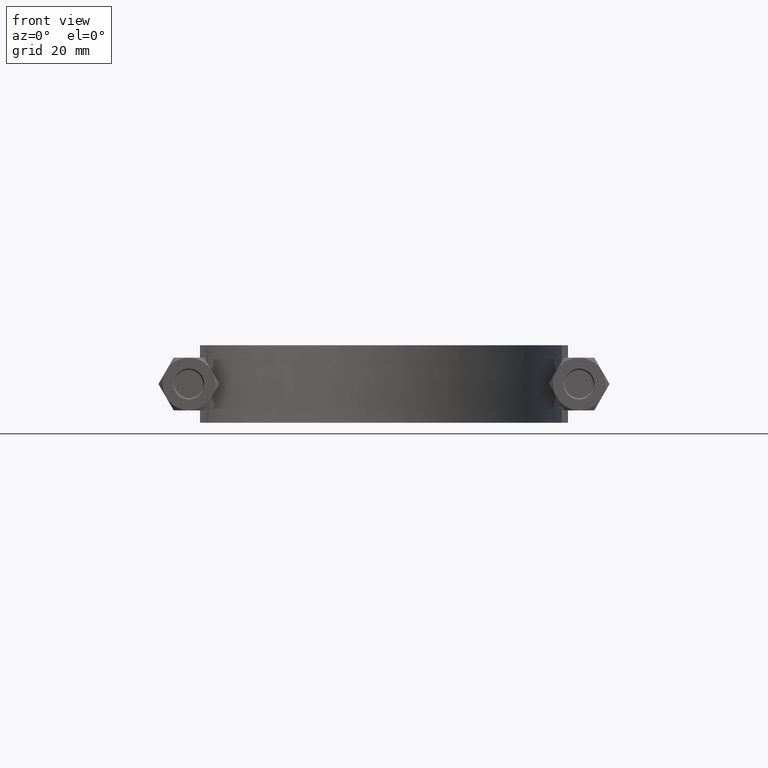
[diagram: clean part render]
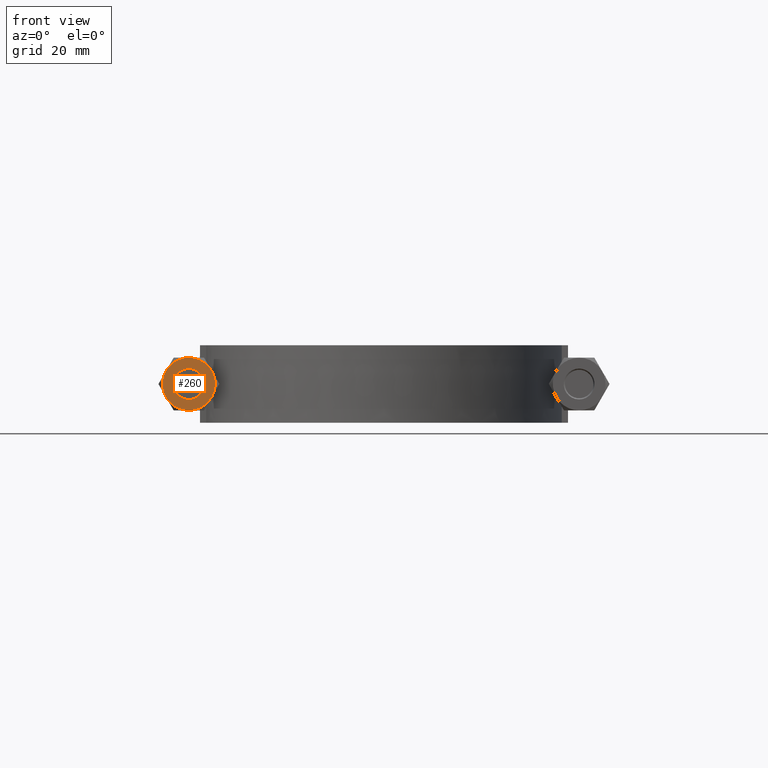
[diagram: same view with one face highlighted and labeled with its STEP entity id]
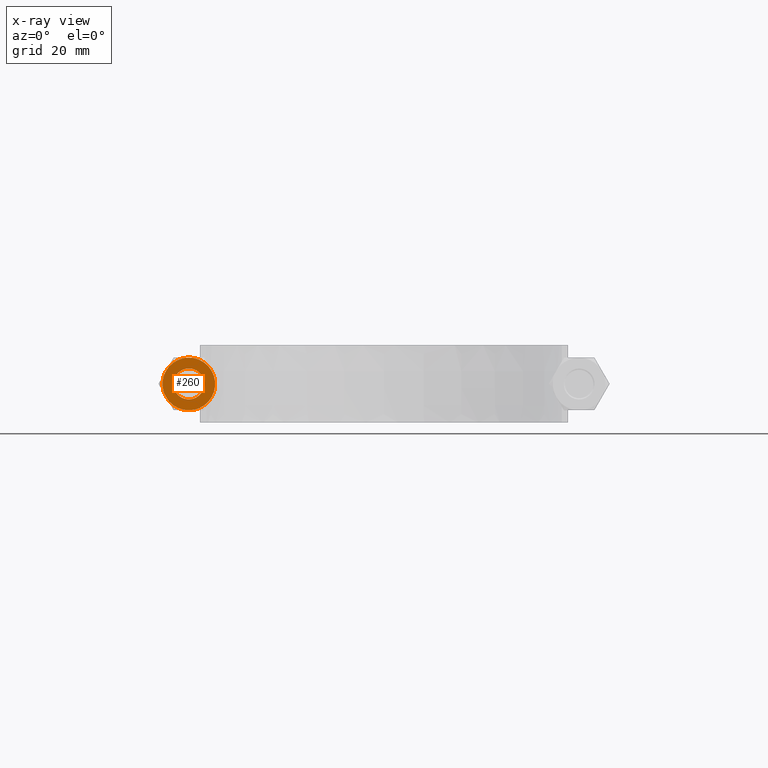
[diagram: x-ray of the same camera — body ghosted, the highlighted face saturated]
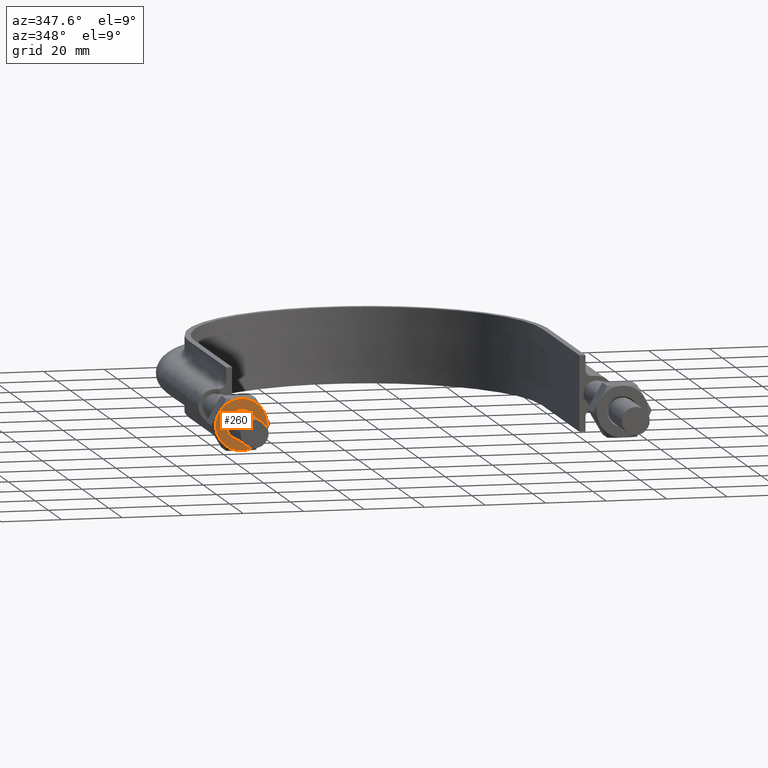
[diagram: same view with one face highlighted and labeled with its STEP entity id]
A machine part, front view. The second image highlights one B-rep face of the part: STEP entity #260.
The next image is the same camera in x-ray: the body ghosted, the highlighted face saturated — about 0% of this face is hidden behind the body in this view.
A second angle (auxiliary view) of the same face is appended — the face is thin or edge-on in the first view.
In plain terms, the highlighted planar face has unit normal (0, 1, 0).
Its self-contained STEP definition (entity closure, byte-faithful):
#260 = ADVANCED_FACE( '', ( #384, #385 ), #386, .F. );
#384 = FACE_OUTER_BOUND( '', #551, .T. );
#385 = FACE_BOUND( '', #552, .T. );
#386 = PLANE( '', #553 );
#551 = EDGE_LOOP( '', ( #1584, #1585, #1586, #1587, #1588, #1589 ) );
#552 = EDGE_LOOP( '', ( #1590 ) );
#553 = AXIS2_PLACEMENT_3D( '', #1591, #1592, #1593 );
#1584 = ORIENTED_EDGE( '', *, *, #1902, .F. );
#1585 = ORIENTED_EDGE( '', *, *, #1881, .F. );
#1586 = ORIENTED_EDGE( '', *, *, #1895, .F. );
#1587 = ORIENTED_EDGE( '', *, *, #1917, .F. );
#1588 = ORIENTED_EDGE( '', *, *, #1871, .F. );
#1589 = ORIENTED_EDGE( '', *, *, #1918, .F. );
#1590 = ORIENTED_EDGE( '', *, *, #1900, .T. );
#1591 = CARTESIAN_POINT( '', ( -63.0000000000000, 20.0000000000000, -2.44921270764476E-016 ) );
#1592 = DIRECTION( '', ( 9.18247024260625E-049, 1.00000000000000, 6.12303176911190E-017 ) );
#1593 = DIRECTION( '', ( 1.00000000000000, 0.000000000000000, -1.49966072182214E-032 ) );
#1871 = EDGE_CURVE( '', #2056, #2058, #2059, .T. );
#1881 = EDGE_CURVE( '', #2077, #2078, #2079, .T. );
#1895 = EDGE_CURVE( '', #2092, #2077, #2102, .T. );
#1900 = EDGE_CURVE( '', #2109, #2109, #2110, .T. );
#1902 = EDGE_CURVE( '', #2078, #2113, #2114, .T. );
#1917 = EDGE_CURVE( '', #2058, #2092, #2135, .T. );
#1918 = EDGE_CURVE( '', #2113, #2056, #2136, .T. );
#2056 = VERTEX_POINT( '', #2380 );
#2058 = VERTEX_POINT( '', #2387 );
#2059 = CIRCLE( '', #2388, 8.50000000000000 );
#2077 = VERTEX_POINT( '', #2415 );
#2078 = VERTEX_POINT( '', #2416 );
#2079 = CIRCLE( '', #2417, 8.50000000000000 );
#2092 = VERTEX_POINT( '', #2449 );
#2102 = CIRCLE( '', #2472, 8.50000000000000 );
#2109 = VERTEX_POINT( '', #2479 );
#2110 = CIRCLE( '', #2480, 5.00000000000000 );
#2113 = VERTEX_POINT( '', #2483 );
#2114 = CIRCLE( '', #2484, 8.50000000000000 );
#2135 = CIRCLE( '', #2531, 8.50000000000000 );
#2136 = CIRCLE( '', #2532, 8.50000000000000 );
#2380 = CARTESIAN_POINT( '', ( -63.0000000000000, 20.0000000000000, 8.50000000000000 ) );
#2387 = CARTESIAN_POINT( '', ( -55.6387840678323, 20.0000000000000, 4.25000000000000 ) );
#2388 = AXIS2_PLACEMENT_3D( '', #2942, #2943, #2944 );
#2415 = CARTESIAN_POINT( '', ( -63.0000000000000, 20.0000000000000, -8.50000000000000 ) );
#2416 = CARTESIAN_POINT( '', ( -70.3612159321677, 20.0000000000000, -4.25000000000000 ) );
#2417 = AXIS2_PLACEMENT_3D( '', #2961, #2962, #2963 );
#2449 = CARTESIAN_POINT( '', ( -55.6387840678323, 20.0000000000000, -4.25000000000000 ) );
#2472 = AXIS2_PLACEMENT_3D( '', #2974, #2975, #2976 );
#2479 = CARTESIAN_POINT( '', ( -63.0000000000000, 20.0000000000000, 5.00000000000000 ) );
#2480 = AXIS2_PLACEMENT_3D( '', #2989, #2990, #2991 );
#2483 = CARTESIAN_POINT( '', ( -70.3612159321678, 20.0000000000000, 4.24999999999999 ) );
#2484 = AXIS2_PLACEMENT_3D( '', #2995, #2996, #2997 );
#2531 = AXIS2_PLACEMENT_3D( '', #3016, #3017, #3018 );
#2532 = AXIS2_PLACEMENT_3D( '', #3019, #3020, #3021 );
#2942 = CARTESIAN_POINT( '', ( -63.0000000000000, 20.0000000000000, -2.44921270764476E-016 ) );
#2943 = DIRECTION( '', ( 9.18247024260625E-049, 1.00000000000000, 6.12303176911190E-017 ) );
#2944 = DIRECTION( '', ( 0.000000000000000, -6.12303176911190E-017, 1.00000000000000 ) );
#2961 = CARTESIAN_POINT( '', ( -63.0000000000000, 20.0000000000000, -2.44921270764476E-016 ) );
#2962 = DIRECTION( '', ( 9.18247024260625E-049, 1.00000000000000, 6.12303176911190E-017 ) );
#2963 = DIRECTION( '', ( 0.000000000000000, -6.12303176911190E-017, 1.00000000000000 ) );
#2974 = CARTESIAN_POINT( '', ( -63.0000000000000, 20.0000000000000, -2.44921270764476E-016 ) );
#2975 = DIRECTION( '', ( 9.18247024260625E-049, 1.00000000000000, 6.12303176911190E-017 ) );
#2976 = DIRECTION( '', ( 0.000000000000000, -6.12303176911190E-017, 1.00000000000000 ) );
#2989 = CARTESIAN_POINT( '', ( -63.0000000000000, 20.0000000000000, -2.44921270764476E-016 ) );
#2990 = DIRECTION( '', ( 9.18247024260625E-049, 1.00000000000000, 6.12303176911190E-017 ) );
#2991 = DIRECTION( '', ( 0.000000000000000, -6.12303176911190E-017, 1.00000000000000 ) );
#2995 = CARTESIAN_POINT( '', ( -63.0000000000000, 20.0000000000000, -2.44921270764476E-016 ) );
#2996 = DIRECTION( '', ( 9.18247024260625E-049, 1.00000000000000, 6.12303176911190E-017 ) );
#2997 = DIRECTION( '', ( 0.000000000000000, -6.12303176911190E-017, 1.00000000000000 ) );
#3016 = CARTESIAN_POINT( '', ( -63.0000000000000, 20.0000000000000, -2.44921270764476E-016 ) );
#3017 = DIRECTION( '', ( 9.18247024260625E-049, 1.00000000000000, 6.12303176911190E-017 ) );
#3018 = DIRECTION( '', ( 0.000000000000000, -6.12303176911190E-017, 1.00000000000000 ) );
#3019 = CARTESIAN_POINT( '', ( -63.0000000000000, 20.0000000000000, -2.44921270764476E-016 ) );
#3020 = DIRECTION( '', ( 9.18247024260625E-049, 1.00000000000000, 6.12303176911190E-017 ) );
#3021 = DIRECTION( '', ( 0.000000000000000, -6.12303176911190E-017, 1.00000000000000 ) );